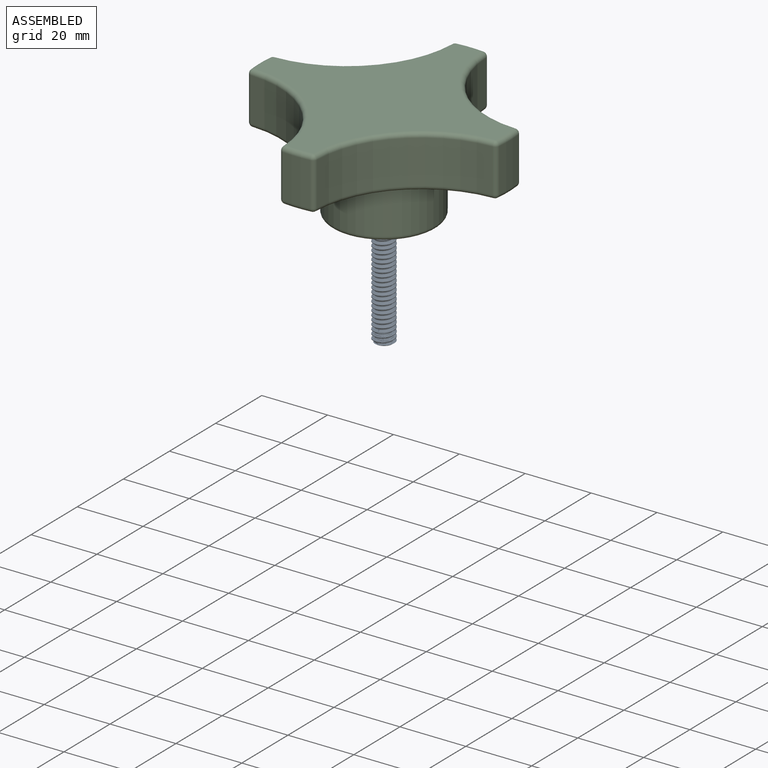
[diagram: assembled view]
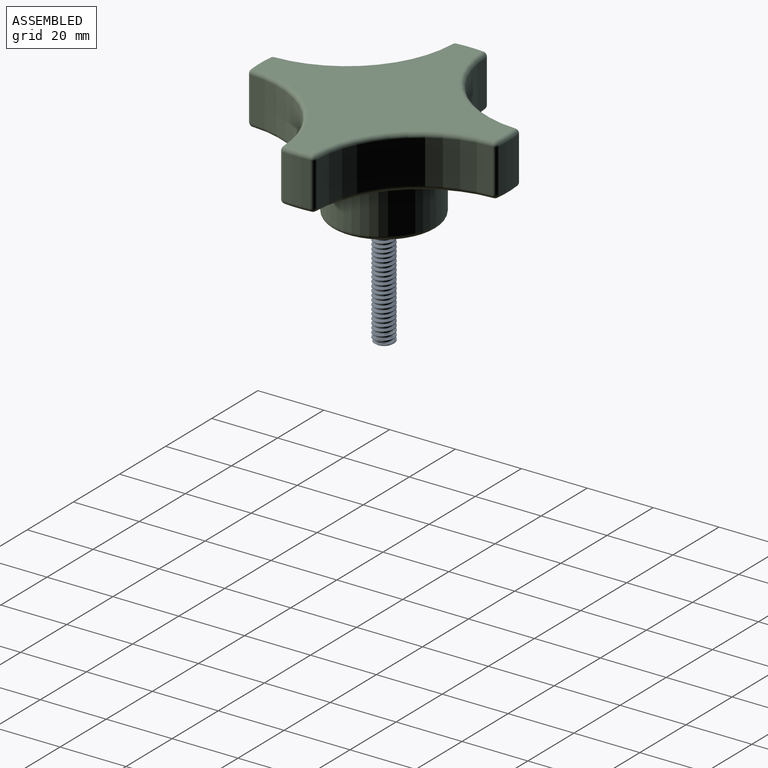
[diagram: assembled view, second angle]
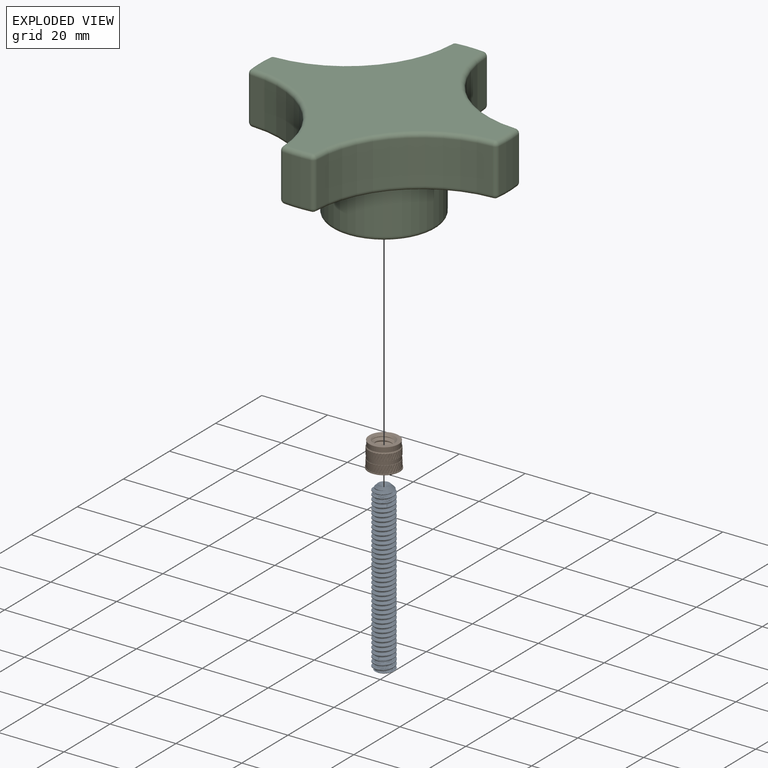
[diagram: exploded view]
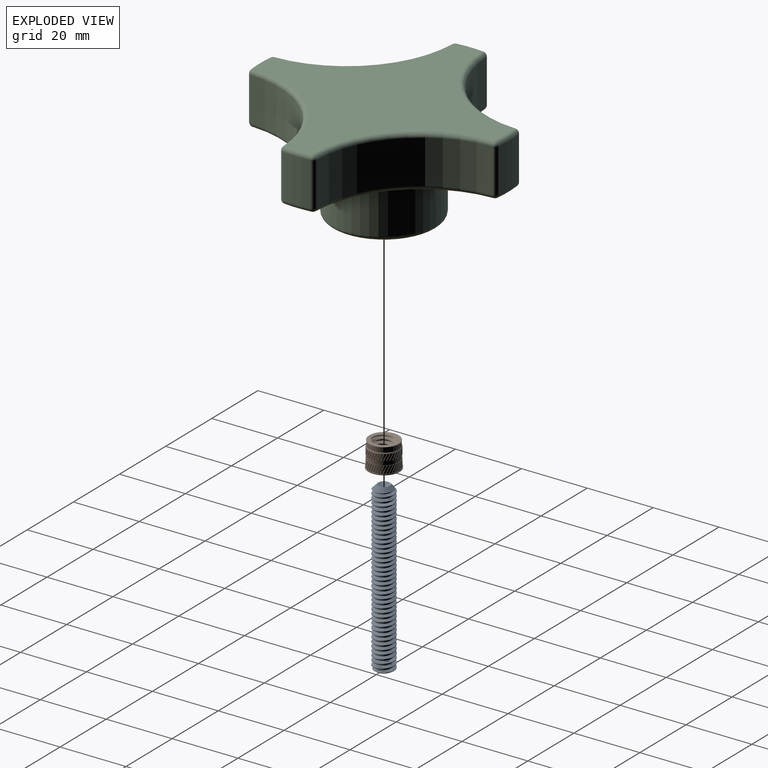
[diagram: exploded view, second angle]
ASSEMBLY  parts=3 mates=2
PART A: 27 faces, bbox 7x7x52 mm
  f0: cone r=1.59mm half-angle=60deg, axis (0,0,1), area 9.1mm2, adj f1,f22,f23,f24,f25,f26
  f1: plane 1.38x0.79mm, normal (0,0,1), area 0.1mm2, adj f0,f2,f21
  f2: plane 2.16x2.01mm, normal (-1,0,0), area 3.3mm2, adj f1,f3,f20,f21,f22
  f3: plane 2.68x2.28mm, normal (-0.5,-0.87,0), area 3.3mm2, adj f2,f4,f19,f22,f23
  f4: plane 2.68x2.28mm, normal (0.5,-0.87,0), area 3.3mm2, adj f3,f5,f18,f23,f24
  f5: plane 2.68x2.53mm, normal (1,0,0), area 3.3mm2, adj f4,f6,f17,f24,f25
  f6: plane 2.68x2.28mm, normal (0.5,0.87,0), area 3.3mm2, adj f5,f7,f21,f25,f26
  f7: cone r=1.83mm half-angle=45deg, axis (0,0,1), area 0mm2, adj f6,f8
  f8: plane 5.09x4.96mm, normal (0,0,1), area 9.2mm2, adj f7,f9,f10,f14,f15,f16,f17,f18
  f9: cone r=1.83mm half-angle=45deg, axis (0,0,1), area 0mm2, adj f8,f21
  f10: cylinder r=2.41mm len=50.13mm, axis (0,0,-1), area 55.5mm2, adj f8,f11,f14,f16
  f11: cone r=1.74mm half-angle=45deg, axis (0,0,1), area 21mm2, adj f10,f12,f13,f14,f16
  f12: cylinder r=3.17mm len=48.92mm, axis (0,0,1), area 122mm2, adj f11,f14,f15,f16
  f13: cone r=1664.28mm half-angle=59deg, axis (0,0,-1), area 11.1mm2, adj f11
  f14: bspline ~50.77x6.35mm, area 607.9mm2, adj f8,f10,f11,f12,f15
  f15: cone r=3.17mm half-angle=55deg, axis (0,0,-1), area 5.6mm2, adj f8,f12,f14,f16
  f16: bspline ~50.66x6.35mm, area 609.1mm2, adj f8,f10,f11,f12,f15
  f17: cone r=1.83mm half-angle=45deg, axis (0,0,1), area 0mm2, adj f5,f8
  f18: cone r=1.83mm half-angle=45deg, axis (0,0,1), area 0mm2, adj f4,f8
  f19: cone r=1.83mm half-angle=45deg, axis (0,0,1), area 0mm2, adj f3,f8
  f20: cone r=1.83mm half-angle=45deg, axis (0,0,1), area 0.3mm2, adj f2,f8
  f21: plane 2.68x2.28mm, normal (-0.5,0.87,0), area 3.3mm2, adj f1,f2,f6,f9,f26
  f22: plane 1.38x0.79mm, normal (0,0,1), area 0.1mm2, adj f0,f2,f3
  f23: plane 1.59x0.46mm, normal (0,0,1), area 0.1mm2, adj f0,f3,f4
  f24: plane 1.38x0.79mm, normal (0,0,1), area 0.1mm2, adj f0,f4,f5
  f25: plane 1.38x0.79mm, normal (0,0,1), area 0.1mm2, adj f0,f5,f6
  f26: plane 1.59x0.46mm, normal (0,0,1), area 0.1mm2, adj f0,f6,f21
PART B: 233 faces, bbox 9.5x8.7x9.5 mm
  f0: cylinder r=4.5mm len=8.99mm, axis (0,1,0), area 32.2mm2, adj f231,f232
  f1: cone r=4.5mm half-angle=45deg, axis (0,1,0), area 2.5mm2, adj f154,f155
  f2: cone r=4.61mm half-angle=30deg, axis (0,1,0), area 9.5mm2, adj f5,f10,f11,f12,f13,f14,f15,f16
  f3: cylinder r=4.76mm len=9.53mm, axis (0,1,0), area 7.6mm2, adj f152,f153
  f4: cylinder r=4.61mm len=2.33mm, axis (0,1,0), area 1.5mm2, adj f152,f159,f162,f232
  f5: cylinder r=4.43mm len=8.86mm, axis (0,1,0), area 41.6mm2, adj f2,f154
  f6: cone r=3.3mm half-angle=45deg, axis (0,-1,0), area 14.2mm2, adj f8,f155,f156,f157,f158
  f7: cone r=2.35mm half-angle=45deg, axis (0,1,0), area 14.2mm2, adj f8,f153,f156,f157,f158
  f8: cylinder r=2.35mm len=5.72mm, axis (0,1,0), area 10.5mm2, adj f6,f7,f156,f158
  f9: cylinder r=4.61mm len=2.33mm, axis (0,1,0), area 1.5mm2, adj f152,f161,f164,f232
  f10: cylinder r=4.61mm len=2.03mm, axis (0,1,0), area 1.3mm2, adj f2,f50,f53,f231
  f11: cylinder r=4.61mm len=2.03mm, axis (0,1,0), area 1.3mm2, adj f2,f52,f55,f231
  f12: cylinder r=4.61mm len=2.03mm, axis (0,1,0), area 1.3mm2, adj f2,f47,f116,f231
  f13: cylinder r=4.61mm len=2.03mm, axis (0,1,0), area 1.3mm2, adj f2,f114,f117,f231
  f14: cylinder r=4.61mm len=2.03mm, axis (0,1,0), area 1.3mm2, adj f2,f112,f115,f231
  f15: cylinder r=4.61mm len=2.03mm, axis (0,1,0), area 1.3mm2, adj f2,f110,f113,f231
  f16: cylinder r=4.61mm len=2.03mm, axis (0,1,0), area 1.3mm2, adj f2,f108,f111,f231
  f17: cylinder r=4.61mm len=2.03mm, axis (0,1,0), area 1.3mm2, adj f2,f106,f109,f231
  f18: cylinder r=4.61mm len=2.03mm, axis (0,1,0), area 1.3mm2, adj f2,f104,f107,f231
  f19: cylinder r=4.61mm len=2.03mm, axis (0,1,0), area 1.3mm2, adj f2,f102,f105,f231
  f20: cylinder r=4.61mm len=2.03mm, axis (0,1,0), area 1.3mm2, adj f2,f100,f103,f231
  f21: cylinder r=4.61mm len=2.03mm, axis (0,1,0), area 1.3mm2, adj f2,f98,f101,f231
  f22: cylinder r=4.61mm len=2.03mm, axis (0,1,0), area 1.3mm2, adj f2,f96,f99,f231
  f23: cylinder r=4.61mm len=2.03mm, axis (0,1,0), area 1.3mm2, adj f2,f94,f97,f231
  f24: cylinder r=4.61mm len=2.03mm, axis (0,1,0), area 1.3mm2, adj f2,f92,f95,f231
  f25: cylinder r=4.61mm len=2.03mm, axis (0,1,0), area 1.3mm2, adj f2,f90,f93,f231
  f26: cylinder r=4.61mm len=2.03mm, axis (0,1,0), area 1.3mm2, adj f2,f88,f91,f231
  f27: cylinder r=4.61mm len=2.03mm, axis (0,1,0), area 1.3mm2, adj f2,f86,f89,f231
  f28: cylinder r=4.61mm len=2.03mm, axis (0,1,0), area 1.3mm2, adj f2,f84,f87,f231
  f29: cylinder r=4.61mm len=2.03mm, axis (0,1,0), area 1.3mm2, adj f2,f82,f85,f231
  f30: cylinder r=4.61mm len=2.03mm, axis (0,1,0), area 1.3mm2, adj f2,f80,f83,f231
  f31: cylinder r=4.61mm len=2.03mm, axis (0,1,0), area 1.3mm2, adj f2,f78,f81,f231
  f32: cylinder r=4.61mm len=2.03mm, axis (0,1,0), area 1.3mm2, adj f2,f76,f79,f231
  f33: cylinder r=4.61mm len=2.03mm, axis (0,1,0), area 1.3mm2, adj f2,f74,f77,f231
  f34: cylinder r=4.61mm len=2.03mm, axis (0,1,0), area 1.3mm2, adj f2,f72,f75,f231
  f35: cylinder r=4.61mm len=2.03mm, axis (0,1,0), area 1.3mm2, adj f2,f70,f73,f231
  f36: cylinder r=4.61mm len=2.03mm, axis (0,1,0), area 1.3mm2, adj f2,f68,f71,f231
  f37: cylinder r=4.61mm len=2.03mm, axis (0,1,0), area 1.3mm2, adj f2,f66,f69,f231
  f38: cylinder r=4.61mm len=2.03mm, axis (0,1,0), area 1.3mm2, adj f2,f64,f67,f231
  f39: cylinder r=4.61mm len=2.03mm, axis (0,1,0), area 1.3mm2, adj f2,f62,f65,f231
  f40: cylinder r=4.61mm len=2.03mm, axis (0,1,0), area 1.3mm2, adj f2,f60,f63,f231
  f41: cylinder r=4.61mm len=2.03mm, axis (0,1,0), area 1.3mm2, adj f2,f58,f61,f231
  f42: cylinder r=4.61mm len=2.03mm, axis (0,1,0), area 1.3mm2, adj f2,f56,f59,f231
  f43: cylinder r=4.61mm len=2.03mm, axis (0,1,0), area 1.3mm2, adj f2,f54,f57,f231
  f44: cylinder r=4.61mm len=2.03mm, axis (0,1,0), area 1.3mm2, adj f2,f48,f51,f231
  f45: cylinder r=4.61mm len=2.03mm, axis (0,1,0), area 1.3mm2, adj f2,f46,f49,f231
  f46: bspline ~2.44x1.12mm, area 0.3mm2, adj f2,f45,f47,f231
  f47: bspline ~2.44x1.19mm, area 0.3mm2, adj f2,f12,f46,f231
  f48: bspline ~2.44x1.22mm, area 0.3mm2, adj f2,f44,f49,f231
  f49: bspline ~2.44x1.27mm, area 0.3mm2, adj f2,f45,f48,f231
  f50: bspline ~2.44x1.29mm, area 0.3mm2, adj f2,f10,f51,f231
  f51: bspline ~2.18x1.18mm, area 0.3mm2, adj f2,f44,f50,f231
  f52: bspline ~2.44x1.32mm, area 0.3mm2, adj f2,f11,f53,f231
  f53: bspline ~2.18x1.18mm, area 0.3mm2, adj f2,f10,f52,f231
  f54: bspline ~2.44x1.3mm, area 0.3mm2, adj f2,f43,f55,f231
  f55: bspline ~2.18x1.15mm, area 0.3mm2, adj f2,f11,f54,f231
  f56: bspline ~2.44x1.25mm, area 0.3mm2, adj f2,f42,f57,f231
  f57: bspline ~2.18x1.07mm, area 0.3mm2, adj f2,f43,f56,f231
  f58: bspline ~2.44x1.16mm, area 0.3mm2, adj f2,f41,f59,f231
  f59: bspline ~2.44x1.08mm, area 0.3mm2, adj f2,f42,f58,f231
  f60: bspline ~2.44x1.03mm, area 0.3mm2, adj f2,f40,f61,f231
  f61: bspline ~2.44x0.94mm, area 0.3mm2, adj f2,f41,f60,f231
  f62: bspline ~2.44x0.99mm, area 0.3mm2, adj f2,f39,f63,f231
  f63: bspline ~2.44x1.08mm, area 0.3mm2, adj f2,f40,f62,f231
  f64: bspline ~2.44x1.12mm, area 0.3mm2, adj f2,f38,f65,f231
  f65: bspline ~2.44x1.19mm, area 0.3mm2, adj f2,f39,f64,f231
  f66: bspline ~2.44x1.22mm, area 0.3mm2, adj f2,f37,f67,f231
  f67: bspline ~2.44x1.27mm, area 0.3mm2, adj f2,f38,f66,f231
  f68: bspline ~2.44x1.29mm, area 0.3mm2, adj f2,f36,f69,f231
  f69: bspline ~2.18x1.18mm, area 0.3mm2, adj f2,f37,f68,f231
  f70: bspline ~2.44x1.32mm, area 0.3mm2, adj f2,f35,f71,f231
  f71: bspline ~2.18x1.18mm, area 0.3mm2, adj f2,f36,f70,f231
  f72: bspline ~2.44x1.3mm, area 0.3mm2, adj f2,f34,f73,f231
  f73: bspline ~2.18x1.15mm, area 0.3mm2, adj f2,f35,f72,f231
  f74: bspline ~2.44x1.25mm, area 0.3mm2, adj f2,f33,f75,f231
  f75: bspline ~2.18x1.07mm, area 0.3mm2, adj f2,f34,f74,f231
  f76: bspline ~2.44x1.16mm, area 0.3mm2, adj f2,f32,f77,f231
  f77: bspline ~2.44x1.08mm, area 0.3mm2, adj f2,f33,f76,f231
  f78: bspline ~2.44x1.03mm, area 0.3mm2, adj f2,f31,f79,f231
  f79: bspline ~2.44x0.94mm, area 0.3mm2, adj f2,f32,f78,f231
  f80: bspline ~2.44x0.99mm, area 0.3mm2, adj f2,f30,f81,f231
  f81: bspline ~2.44x1.08mm, area 0.3mm2, adj f2,f31,f80,f231
  f82: bspline ~2.44x1.12mm, area 0.3mm2, adj f2,f29,f83,f231
  f83: bspline ~2.44x1.19mm, area 0.3mm2, adj f2,f30,f82,f231
  f84: bspline ~2.44x1.22mm, area 0.3mm2, adj f2,f28,f85,f231
  f85: bspline ~2.44x1.27mm, area 0.3mm2, adj f2,f29,f84,f231
  f86: bspline ~2.44x1.29mm, area 0.3mm2, adj f2,f27,f87,f231
  f87: bspline ~2.18x1.18mm, area 0.3mm2, adj f2,f28,f86,f231
  f88: bspline ~2.44x1.32mm, area 0.3mm2, adj f2,f26,f89,f231
  f89: bspline ~2.18x1.18mm, area 0.3mm2, adj f2,f27,f88,f231
  f90: bspline ~2.44x1.3mm, area 0.3mm2, adj f2,f25,f91,f231
  f91: bspline ~2.18x1.15mm, area 0.3mm2, adj f2,f26,f90,f231
  f92: bspline ~2.44x1.25mm, area 0.3mm2, adj f2,f24,f93,f231
  f93: bspline ~2.18x1.07mm, area 0.3mm2, adj f2,f25,f92,f231
  f94: bspline ~2.44x1.16mm, area 0.3mm2, adj f2,f23,f95,f231
  f95: bspline ~2.44x1.08mm, area 0.3mm2, adj f2,f24,f94,f231
  f96: bspline ~2.44x1.03mm, area 0.3mm2, adj f2,f22,f97,f231
  f97: bspline ~2.44x0.94mm, area 0.3mm2, adj f2,f23,f96,f231
  f98: bspline ~2.44x0.99mm, area 0.3mm2, adj f2,f21,f99,f231
  f99: bspline ~2.44x1.08mm, area 0.3mm2, adj f2,f22,f98,f231
  f100: bspline ~2.44x1.12mm, area 0.3mm2, adj f2,f20,f101,f231
  f101: bspline ~2.44x1.19mm, area 0.3mm2, adj f2,f21,f100,f231
  f102: bspline ~2.44x1.22mm, area 0.3mm2, adj f2,f19,f103,f231
  f103: bspline ~2.44x1.27mm, area 0.3mm2, adj f2,f20,f102,f231
  f104: bspline ~2.44x1.29mm, area 0.3mm2, adj f2,f18,f105,f231
  f105: bspline ~2.18x1.18mm, area 0.3mm2, adj f2,f19,f104,f231
  f106: bspline ~2.44x1.32mm, area 0.3mm2, adj f2,f17,f107,f231
  f107: bspline ~2.18x1.18mm, area 0.3mm2, adj f2,f18,f106,f231
  f108: bspline ~2.44x1.3mm, area 0.3mm2, adj f2,f16,f109,f231
  f109: bspline ~2.18x1.15mm, area 0.3mm2, adj f2,f17,f108,f231
  f110: bspline ~2.44x1.25mm, area 0.3mm2, adj f2,f15,f111,f231
  f111: bspline ~2.18x1.07mm, area 0.3mm2, adj f2,f16,f110,f231
  f112: bspline ~2.44x1.16mm, area 0.3mm2, adj f2,f14,f113,f231
  f113: bspline ~2.44x1.08mm, area 0.3mm2, adj f2,f15,f112,f231
  f114: bspline ~2.44x1.03mm, area 0.3mm2, adj f2,f13,f115,f231
  f115: bspline ~2.44x0.94mm, area 0.3mm2, adj f2,f14,f114,f231
  f116: bspline ~2.44x0.99mm, area 0.3mm2, adj f2,f12,f117,f231
  f117: bspline ~2.44x1.08mm, area 0.3mm2, adj f2,f13,f116,f231
  f118: cylinder r=4.61mm len=2.33mm, axis (0,1,0), area 1.5mm2, adj f152,f160,f229,f232
  f119: cylinder r=4.61mm len=2.33mm, axis (0,1,0), area 1.5mm2, adj f152,f227,f230,f232
  f120: cylinder r=4.61mm len=2.33mm, axis (0,1,0), area 1.5mm2, adj f152,f225,f228,f232
  f121: cylinder r=4.61mm len=2.33mm, axis (0,1,0), area 1.5mm2, adj f152,f223,f226,f232
  f122: cylinder r=4.61mm len=2.33mm, axis (0,1,0), area 1.5mm2, adj f152,f221,f224,f232
  f123: cylinder r=4.61mm len=2.33mm, axis (0,1,0), area 1.5mm2, adj f152,f219,f222,f232
  f124: cylinder r=4.61mm len=2.33mm, axis (0,1,0), area 1.5mm2, adj f152,f217,f220,f232
  f125: cylinder r=4.61mm len=2.33mm, axis (0,1,0), area 1.5mm2, adj f152,f215,f218,f232
  f126: cylinder r=4.61mm len=2.33mm, axis (0,1,0), area 1.5mm2, adj f152,f213,f216,f232
  f127: cylinder r=4.61mm len=2.33mm, axis (0,1,0), area 1.5mm2, adj f152,f211,f214,f232
  f128: cylinder r=4.61mm len=2.33mm, axis (0,1,0), area 1.5mm2, adj f152,f209,f212,f232
  f129: cylinder r=4.61mm len=2.33mm, axis (0,1,0), area 1.5mm2, adj f152,f207,f210,f232
  f130: cylinder r=4.61mm len=2.33mm, axis (0,1,0), area 1.5mm2, adj f152,f205,f208,f232
  f131: cylinder r=4.61mm len=2.33mm, axis (0,1,0), area 1.5mm2, adj f152,f203,f206,f232
  f132: cylinder r=4.61mm len=2.33mm, axis (0,1,0), area 1.5mm2, adj f152,f201,f204,f232
  f133: cylinder r=4.61mm len=2.33mm, axis (0,1,0), area 1.5mm2, adj f152,f199,f202,f232
  f134: cylinder r=4.61mm len=2.33mm, axis (0,1,0), area 1.5mm2, adj f152,f197,f200,f232
  f135: cylinder r=4.61mm len=2.33mm, axis (0,1,0), area 1.5mm2, adj f152,f195,f198,f232
  f136: cylinder r=4.61mm len=2.33mm, axis (0,1,0), area 1.5mm2, adj f152,f193,f196,f232
  f137: cylinder r=4.61mm len=2.33mm, axis (0,1,0), area 1.5mm2, adj f152,f191,f194,f232
  f138: cylinder r=4.61mm len=2.33mm, axis (0,1,0), area 1.5mm2, adj f152,f189,f192,f232
  f139: cylinder r=4.61mm len=2.33mm, axis (0,1,0), area 1.5mm2, adj f152,f187,f190,f232
  f140: cylinder r=4.61mm len=2.33mm, axis (0,1,0), area 1.5mm2, adj f152,f185,f188,f232
  f141: cylinder r=4.61mm len=2.33mm, axis (0,1,0), area 1.5mm2, adj f152,f183,f186,f232
  f142: cylinder r=4.61mm len=2.33mm, axis (0,1,0), area 1.5mm2, adj f152,f181,f184,f232
  f143: cylinder r=4.61mm len=2.33mm, axis (0,1,0), area 1.5mm2, adj f152,f179,f182,f232
  f144: cylinder r=4.61mm len=2.33mm, axis (0,1,0), area 1.5mm2, adj f152,f177,f180,f232
  f145: cylinder r=4.61mm len=2.33mm, axis (0,1,0), area 1.5mm2, adj f152,f175,f178,f232
  f146: cylinder r=4.61mm len=2.33mm, axis (0,1,0), area 1.5mm2, adj f152,f173,f176,f232
  f147: cylinder r=4.61mm len=2.33mm, axis (0,1,0), area 1.5mm2, adj f152,f171,f174,f232
  f148: cylinder r=4.61mm len=2.33mm, axis (0,1,0), area 1.5mm2, adj f152,f169,f172,f232
  f149: cylinder r=4.61mm len=2.33mm, axis (0,1,0), area 1.5mm2, adj f152,f167,f170,f232
  f150: cylinder r=4.61mm len=2.33mm, axis (0,1,0), area 1.5mm2, adj f152,f165,f168,f232
  f151: cylinder r=4.61mm len=2.33mm, axis (0,1,0), area 1.5mm2, adj f152,f163,f166,f232
  f152: plane 9.53x9.53mm, normal (0,-1,0), area 4.8mm2, adj f3,f4,f9,f118,f119,f120,f121,f122
  f153: plane 9.53x9.53mm, normal (0,1,0), area 37mm2, adj f3,f7
  f154: plane 8.99x8.99mm, normal (0,1,0), area 1.8mm2, adj f1,f5
  f155: plane 8.86x8.86mm, normal (0,-1,0), area 27.5mm2, adj f1,f6
  f156: bspline ~8.14x6.35mm, area 85.8mm2, adj f6,f7,f8,f157
  f157: cylinder r=3.17mm len=7.36mm, axis (0,1,0), area 18.4mm2, adj f6,f7,f156,f158
  f158: bspline ~8.14x6.35mm, area 85.2mm2, adj f6,f7,f8,f157
  f159: bspline ~2.57x1.35mm, area 0.3mm2, adj f4,f152,f160,f232
  f160: bspline ~2.57x1.37mm, area 0.3mm2, adj f118,f152,f159,f232
  f161: bspline ~2.33x1.26mm, area 0.3mm2, adj f9,f152,f162,f232
  f162: bspline ~2.57x1.37mm, area 0.3mm2, adj f4,f152,f161,f232
  f163: bspline ~2.57x1.36mm, area 0.3mm2, adj f151,f152,f164,f232
  f164: bspline ~2.33x1.21mm, area 0.3mm2, adj f9,f152,f163,f232
  f165: bspline ~2.33x1.19mm, area 0.3mm2, adj f150,f152,f166,f232
  f166: bspline ~2.33x1.13mm, area 0.3mm2, adj f151,f152,f165,f232
  f167: bspline ~2.57x1.21mm, area 0.3mm2, adj f149,f152,f168,f232
  f168: bspline ~2.33x1.02mm, area 0.3mm2, adj f150,f152,f167,f232
  f169: bspline ~2.57x1.08mm, area 0.3mm2, adj f148,f152,f170,f232
  f170: bspline ~2.33x0.91mm, area 0.3mm2, adj f149,f152,f169,f232
  f171: bspline ~2.57x1.04mm, area 0.3mm2, adj f147,f152,f172,f232
  f172: bspline ~2.57x1.13mm, area 0.3mm2, adj f148,f152,f171,f232
  f173: bspline ~2.57x1.18mm, area 0.3mm2, adj f146,f152,f174,f232
  f174: bspline ~2.57x1.25mm, area 0.3mm2, adj f147,f152,f173,f232
  f175: bspline ~2.33x1.18mm, area 0.3mm2, adj f145,f152,f176,f232
  f176: bspline ~2.57x1.33mm, area 0.3mm2, adj f146,f152,f175,f232
  f177: bspline ~2.33x1.24mm, area 0.3mm2, adj f144,f152,f178,f232
  f178: bspline ~2.57x1.37mm, area 0.3mm2, adj f145,f152,f177,f232
  f179: bspline ~2.33x1.26mm, area 0.3mm2, adj f143,f152,f180,f232
  f180: bspline ~2.57x1.37mm, area 0.3mm2, adj f144,f152,f179,f232
  f181: bspline ~2.57x1.36mm, area 0.3mm2, adj f142,f152,f182,f232
  f182: bspline ~2.33x1.21mm, area 0.3mm2, adj f143,f152,f181,f232
  f183: bspline ~2.33x1.19mm, area 0.3mm2, adj f141,f152,f184,f232
  f184: bspline ~2.33x1.13mm, area 0.3mm2, adj f142,f152,f183,f232
  f185: bspline ~2.57x1.21mm, area 0.3mm2, adj f140,f152,f186,f232
  f186: bspline ~2.33x1.02mm, area 0.3mm2, adj f141,f152,f185,f232
  f187: bspline ~2.57x1.08mm, area 0.3mm2, adj f139,f152,f188,f232
  f188: bspline ~2.33x0.91mm, area 0.3mm2, adj f140,f152,f187,f232
  f189: bspline ~2.57x1.04mm, area 0.3mm2, adj f138,f152,f190,f232
  f190: bspline ~2.57x1.13mm, area 0.3mm2, adj f139,f152,f189,f232
  f191: bspline ~2.57x1.18mm, area 0.3mm2, adj f137,f152,f192,f232
  f192: bspline ~2.57x1.25mm, area 0.3mm2, adj f138,f152,f191,f232
  f193: bspline ~2.33x1.18mm, area 0.3mm2, adj f136,f152,f194,f232
  f194: bspline ~2.57x1.33mm, area 0.3mm2, adj f137,f152,f193,f232
  f195: bspline ~2.33x1.24mm, area 0.3mm2, adj f135,f152,f196,f232
  f196: bspline ~2.57x1.37mm, area 0.3mm2, adj f136,f152,f195,f232
  f197: bspline ~2.33x1.26mm, area 0.3mm2, adj f134,f152,f198,f232
  f198: bspline ~2.57x1.37mm, area 0.3mm2, adj f135,f152,f197,f232
  f199: bspline ~2.57x1.36mm, area 0.3mm2, adj f133,f152,f200,f232
  f200: bspline ~2.33x1.21mm, area 0.3mm2, adj f134,f152,f199,f232
  f201: bspline ~2.33x1.19mm, area 0.3mm2, adj f132,f152,f202,f232
  f202: bspline ~2.33x1.13mm, area 0.3mm2, adj f133,f152,f201,f232
  f203: bspline ~2.57x1.21mm, area 0.3mm2, adj f131,f152,f204,f232
  f204: bspline ~2.33x1.02mm, area 0.3mm2, adj f132,f152,f203,f232
  f205: bspline ~2.57x1.08mm, area 0.3mm2, adj f130,f152,f206,f232
  f206: bspline ~2.33x0.91mm, area 0.3mm2, adj f131,f152,f205,f232
  f207: bspline ~2.57x1.04mm, area 0.3mm2, adj f129,f152,f208,f232
  f208: bspline ~2.57x1.13mm, area 0.3mm2, adj f130,f152,f207,f232
  f209: bspline ~2.57x1.18mm, area 0.3mm2, adj f128,f152,f210,f232
  f210: bspline ~2.57x1.25mm, area 0.3mm2, adj f129,f152,f209,f232
  f211: bspline ~2.33x1.18mm, area 0.3mm2, adj f127,f152,f212,f232
  f212: bspline ~2.57x1.33mm, area 0.3mm2, adj f128,f152,f211,f232
  f213: bspline ~2.33x1.24mm, area 0.3mm2, adj f126,f152,f214,f232
  f214: bspline ~2.57x1.37mm, area 0.3mm2, adj f127,f152,f213,f232
  f215: bspline ~2.33x1.26mm, area 0.3mm2, adj f125,f152,f216,f232
  f216: bspline ~2.57x1.37mm, area 0.3mm2, adj f126,f152,f215,f232
  f217: bspline ~2.57x1.36mm, area 0.3mm2, adj f124,f152,f218,f232
  f218: bspline ~2.33x1.21mm, area 0.3mm2, adj f125,f152,f217,f232
  f219: bspline ~2.33x1.19mm, area 0.3mm2, adj f123,f152,f220,f232
  f220: bspline ~2.33x1.13mm, area 0.3mm2, adj f124,f152,f219,f232
  f221: bspline ~2.57x1.21mm, area 0.3mm2, adj f122,f152,f222,f232
  f222: bspline ~2.33x1.02mm, area 0.3mm2, adj f123,f152,f221,f232
  f223: bspline ~2.57x1.08mm, area 0.3mm2, adj f121,f152,f224,f232
  f224: bspline ~2.33x0.91mm, area 0.3mm2, adj f122,f152,f223,f232
  f225: bspline ~2.57x1.04mm, area 0.3mm2, adj f120,f152,f226,f232
  f226: bspline ~2.57x1.13mm, area 0.3mm2, adj f121,f152,f225,f232
  f227: bspline ~2.57x1.18mm, area 0.3mm2, adj f119,f152,f228,f232
  f228: bspline ~2.57x1.25mm, area 0.3mm2, adj f120,f152,f227,f232
  f229: bspline ~2.33x1.18mm, area 0.3mm2, adj f118,f152,f230,f232
  f230: bspline ~2.57x1.33mm, area 0.3mm2, adj f119,f152,f229,f232
  f231: plane 9.22x9.22mm, normal (0,1,0), area 3mm2, adj f0,f10,f11,f12,f13,f14,f15,f16
  f232: plane 9.22x9.22mm, normal (0,-1,0), area 3mm2, adj f0,f4,f9,f118,f119,f120,f121,f122
PART C: 56 faces, bbox 76.7x76.7x31.8 mm
  f0: torus R=14.55mm, axis (0,0,-1), area 201mm2, adj f4,f8
  f1: torus R=36.78mm, axis (0,0,1), area 17.1mm2, adj f5,f10,f42,f45
  f2: torus R=36.78mm, axis (0,0,-1), area 17.1mm2, adj f3,f9,f35,f37
  f3: cylinder r=38.1mm len=13.23mm, axis (0,0,-1), area 110.6mm2, adj f2,f13,f14,f46
  f4: cylinder r=15.88mm len=31.75mm, axis (0,0,-1), area 1293.2mm2, adj f0,f55
  f5: cylinder r=38.1mm len=13.23mm, axis (0,0,-1), area 110.6mm2, adj f1,f19,f20,f24
  f6: cylinder r=38.1mm len=13.23mm, axis (0,0,-1), area 110.6mm2, adj f17,f18,f32,f51
  f7: cylinder r=38.1mm len=13.23mm, axis (0,0,-1), area 110.6mm2, adj f21,f22,f29,f39
  f8: plane 29.1x29.1mm, normal (0,0,-1), area 592.1mm2, adj f0,f54
  f9: plane 73.55x73.55mm, normal (0,0,-1), area 1130mm2, adj f2,f24,f25,f28,f29,f32,f33,f36
  f10: plane 73.55x73.55mm, normal (0,0,1), area 2088mm2, adj f1,f39,f40,f43,f46,f47,f50,f51
  f11: cylinder r=32.4mm len=31.25mm, axis (0,0,1), area 643.5mm2, adj f14,f17,f36,f50
  f12: cylinder r=32.4mm len=31.25mm, axis (0,0,1), area 643.5mm2, adj f13,f22,f33,f43
  f13: cylinder r=1.32mm len=13.23mm, axis (0,0,1), area 25mm2, adj f3,f12,f35,f44
  f14: cylinder r=1.32mm len=13.23mm, axis (0,0,-1), area 25mm2, adj f3,f11,f37,f48
  f15: cylinder r=32.4mm len=31.25mm, axis (0,0,1), area 643.5mm2, adj f18,f19,f28,f47
  f16: cylinder r=32.4mm len=31.25mm, axis (0,0,1), area 643.5mm2, adj f20,f21,f25,f40
  f17: cylinder r=1.32mm len=13.23mm, axis (0,0,1), area 25mm2, adj f6,f11,f34,f52
  f18: cylinder r=1.32mm len=13.23mm, axis (0,0,-1), area 25mm2, adj f6,f15,f30,f49
  f19: cylinder r=1.32mm len=13.23mm, axis (0,0,1), area 25mm2, adj f5,f15,f26,f45
  f20: cylinder r=1.32mm len=13.23mm, axis (0,0,-1), area 25mm2, adj f5,f16,f23,f42
  f21: cylinder r=1.32mm len=13.23mm, axis (0,0,1), area 25mm2, adj f7,f16,f27,f38
  f22: cylinder r=1.32mm len=13.23mm, axis (0,0,-1), area 25mm2, adj f7,f12,f31,f41
  f23: sphere r=1.32mm, area 2.5mm2, adj f20,f24,f25
  f24: torus R=36.78mm, axis (0,0,-1), area 17.1mm2, adj f5,f9,f23,f26
  f25: torus R=33.72mm, axis (0,0,-1), area 102.6mm2, adj f9,f16,f23,f27
  f26: sphere r=1.32mm, area 2.5mm2, adj f19,f24,f28
  f27: sphere r=1.32mm, area 2.5mm2, adj f21,f25,f29
  f28: torus R=33.72mm, axis (0,0,-1), area 102.6mm2, adj f9,f15,f26,f30
  f29: torus R=36.78mm, axis (0,0,-1), area 17.1mm2, adj f7,f9,f27,f31
  f30: sphere r=1.32mm, area 2.5mm2, adj f18,f28,f32
  f31: sphere r=1.32mm, area 2.5mm2, adj f22,f29,f33
  f32: torus R=36.78mm, axis (0,0,-1), area 17.1mm2, adj f6,f9,f30,f34
  f33: torus R=33.72mm, axis (0,0,-1), area 102.6mm2, adj f9,f12,f31,f35
  f34: sphere r=1.32mm, area 2.5mm2, adj f17,f32,f36
  f35: sphere r=1.32mm, area 2.5mm2, adj f2,f13,f33
  f36: torus R=33.72mm, axis (0,0,-1), area 102.6mm2, adj f9,f11,f34,f37
  f37: sphere r=1.32mm, area 2.5mm2, adj f2,f14,f36
  f38: sphere r=1.32mm, area 2.5mm2, adj f21,f39,f40
  f39: torus R=36.78mm, axis (0,0,1), area 17.1mm2, adj f7,f10,f38,f41
  f40: torus R=33.72mm, axis (0,0,1), area 102.6mm2, adj f10,f16,f38,f42
  f41: sphere r=1.32mm, area 2.5mm2, adj f22,f39,f43
  f42: sphere r=1.32mm, area 2.5mm2, adj f1,f20,f40
  f43: torus R=33.72mm, axis (0,0,1), area 102.6mm2, adj f10,f12,f41,f44
  f44: sphere r=1.32mm, area 2.5mm2, adj f13,f43,f46
  f45: sphere r=1.32mm, area 2.5mm2, adj f1,f19,f47
  f46: torus R=36.78mm, axis (0,0,1), area 17.1mm2, adj f3,f10,f44,f48
  f47: torus R=33.72mm, axis (0,0,1), area 102.6mm2, adj f10,f15,f45,f49
  f48: sphere r=1.32mm, area 2.5mm2, adj f14,f46,f50
  f49: sphere r=1.32mm, area 2.5mm2, adj f18,f47,f51
  f50: torus R=33.72mm, axis (0,0,1), area 102.6mm2, adj f10,f11,f48,f52
  f51: torus R=36.78mm, axis (0,0,1), area 17.1mm2, adj f6,f10,f49,f52
  f52: sphere r=1.32mm, area 2.5mm2, adj f17,f50,f51
  f53: plane 9.65x9.65mm, normal (0,0,-1), area 73.2mm2, adj f54
  f54: cylinder r=4.83mm len=15.88mm, axis (0,0,-1), area 481.4mm2, adj f8,f53
  f55: cone r=15.88mm half-angle=45deg, axis (0,0,1), area 235.1mm2, adj f4,f9
PLACE A rot(axis=(-1,0,0),180deg) t=(-0.32,2.12,-6.2)mm
PLACE B rot(axis=(-1,0,0),90deg) t=(-0.32,2.12,4.17)mm
PLACE C t=(-0.32,2.12,3.85)mm fixed
MATE fastened A.f13 <-> C.f54  axis (0,0,1) through (-0.32,2.12,19.73)mm
MATE fastened B.f2 <-> C.f54  axis (0,0,1) through (-0.32,2.12,11.79)mm
